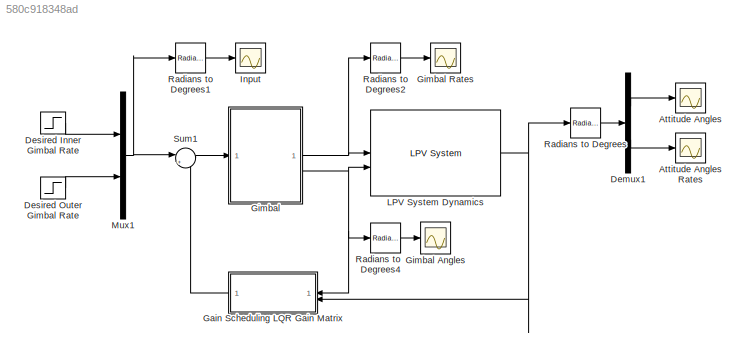
MODEL slx_580c918348ad
KIND model
CONFIG AbsTol = auto
CONFIG EnableMultiTasking = off
CONFIG FixedStep = auto
CONFIG MaxStep = auto
CONFIG MinStep = auto
CONFIG RelTol = 1e-3
CONFIG SampleTimeConstraint = Unconstrained
CONFIG SolverName = ode45
CONFIG StartTime = 0.0
CONFIG StopTime = tf
BLOCK [Scope] Attitude Angles
  Floating = off
  NumInputPorts = 1
  ScopeSpecificationString = Simulink.scopes.TimeScopeBlockCfg('CurrentConfiguration', extmgr.ConfigurationSet(extmgr.Configuration('Core','General UI',true),extmgr.Configuration('Core','Source UI',true),extmgr.Configuration('Sources','WiredSimulink',true,'DataLoggingVariableName','Attitude_Angles','DataLogging',true,'DataLoggingSaveFormat','StructureWithTime'),extmgr.Configuration('Visuals','Time Domain',true,'SerializedDisp...<+1694ch>
BLOCK [Scope] Attitude Angles Rates
  Floating = off
  NumInputPorts = 1
  ScopeSpecificationString = Simulink.scopes.TimeScopeBlockCfg('CurrentConfiguration', extmgr.ConfigurationSet(extmgr.Configuration('Core','General UI',true),extmgr.Configuration('Core','Source UI',true),extmgr.Configuration('Sources','WiredSimulink',true,'DataLoggingVariableName','Attitude_Angles_Rates','DataLogging',true,'DataLoggingSaveFormat','StructureWithTime'),extmgr.Configuration('Visuals','Time Domain',true,'Serializ...<+1671ch>
BLOCK [Demux] Demux1
  Outputs = 2
BLOCK [Step] Desired Inner Gimbal Rate
  After = 0
  SampleTime = 0
BLOCK [Step] Desired Outer Gimbal Rate
  After = 0
  SampleTime = 0
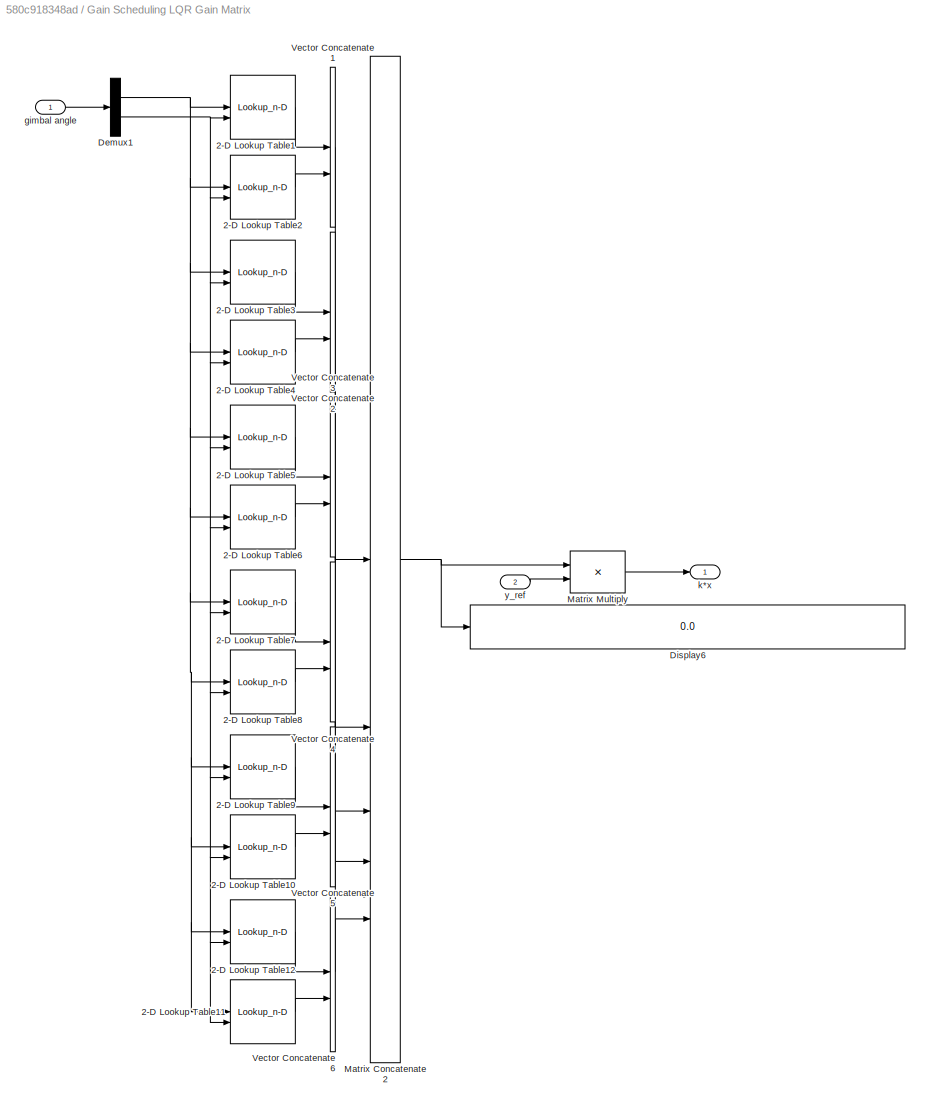
BLOCK [SubSystem] Gain Scheduling LQR Gain Matrix
BLOCK [Lookup_n-D] Gain Scheduling LQR Gain Matrix/2-D Lookup Table1
  BreakpointsForDimension1 = p1
  BreakpointsForDimension2 = p2
  InputPortMap = u0,u1
  InternalRulePriority = Speed
  RndMeth = Simplest
  Table = K11
BLOCK [Lookup_n-D] Gain Scheduling LQR Gain Matrix/2-D Lookup Table10
  BreakpointsForDimension1 = p1
  BreakpointsForDimension2 = p2
  InputPortMap = u0,u1
  InternalRulePriority = Speed
  RndMeth = Simplest
  Table = K25
BLOCK [Lookup_n-D] Gain Scheduling LQR Gain Matrix/2-D Lookup Table11
  BreakpointsForDimension1 = p1
  BreakpointsForDimension2 = p2
  InputPortMap = u0,u1
  InternalRulePriority = Speed
  RndMeth = Simplest
  Table = K26
BLOCK [Lookup_n-D] Gain Scheduling LQR Gain Matrix/2-D Lookup Table12
  BreakpointsForDimension1 = p1
  BreakpointsForDimension2 = p2
  InputPortMap = u0,u1
  InternalRulePriority = Speed
  RndMeth = Simplest
  Table = K16
BLOCK [Lookup_n-D] Gain Scheduling LQR Gain Matrix/2-D Lookup Table2
  BreakpointsForDimension1 = p1
  BreakpointsForDimension2 = p2
  InputPortMap = u0,u1
  InternalRulePriority = Speed
  RndMeth = Simplest
  Table = K21
BLOCK [Lookup_n-D] Gain Scheduling LQR Gain Matrix/2-D Lookup Table3
  BreakpointsForDimension1 = p1
  BreakpointsForDimension2 = p2
  InputPortMap = u0,u1
  InternalRulePriority = Speed
  RndMeth = Simplest
  Table = K12
BLOCK [Lookup_n-D] Gain Scheduling LQR Gain Matrix/2-D Lookup Table4
  BreakpointsForDimension1 = p1
  BreakpointsForDimension2 = p2
  InputPortMap = u0,u1
  InternalRulePriority = Speed
  RndMeth = Simplest
  Table = K22
BLOCK [Lookup_n-D] Gain Scheduling LQR Gain Matrix/2-D Lookup Table5
  BreakpointsForDimension1 = p1
  BreakpointsForDimension2 = p2
  InputPortMap = u0,u1
  InternalRulePriority = Speed
  RndMeth = Simplest
  Table = K13
BLOCK [Lookup_n-D] Gain Scheduling LQR Gain Matrix/2-D Lookup Table6
  BreakpointsForDimension1 = p1
  BreakpointsForDimension2 = p2
  InputPortMap = u0,u1
  InternalRulePriority = Speed
  RndMeth = Simplest
  Table = K23
BLOCK [Lookup_n-D] Gain Scheduling LQR Gain Matrix/2-D Lookup Table7
  BreakpointsForDimension1 = p1
  BreakpointsForDimension2 = p2
  InputPortMap = u0,u1
  InternalRulePriority = Speed
  RndMeth = Simplest
  Table = K14
BLOCK [Lookup_n-D] Gain Scheduling LQR Gain Matrix/2-D Lookup Table8
  BreakpointsForDimension1 = p1
  BreakpointsForDimension2 = p2
  InputPortMap = u0,u1
  InternalRulePriority = Speed
  RndMeth = Simplest
  Table = K24
BLOCK [Lookup_n-D] Gain Scheduling LQR Gain Matrix/2-D Lookup Table9
  BreakpointsForDimension1 = p1
  BreakpointsForDimension2 = p2
  InputPortMap = u0,u1
  InternalRulePriority = Speed
  RndMeth = Simplest
  Table = K15
BLOCK [Demux] Gain Scheduling LQR Gain Matrix/Demux1
  Outputs = 2
BLOCK [Display] Gain Scheduling LQR Gain Matrix/Display6
  Decimation = 1
BLOCK [Concatenate] Gain Scheduling LQR Gain Matrix/Matrix Concatenate2
  ConcatenateDimension = 2
  Mode = Multidimensional array
  NumInputs = 6
BLOCK [Product] Gain Scheduling LQR Gain Matrix/Matrix Multiply
  Multiplication = Matrix(*)
BLOCK [Concatenate] Gain Scheduling LQR Gain Matrix/Vector Concatenate1
BLOCK [Concatenate] Gain Scheduling LQR Gain Matrix/Vector Concatenate2
BLOCK [Concatenate] Gain Scheduling LQR Gain Matrix/Vector Concatenate3
BLOCK [Concatenate] Gain Scheduling LQR Gain Matrix/Vector Concatenate4
BLOCK [Concatenate] Gain Scheduling LQR Gain Matrix/Vector Concatenate5
BLOCK [Concatenate] Gain Scheduling LQR Gain Matrix/Vector Concatenate6
BLOCK [Inport] Gain Scheduling LQR Gain Matrix/gimbal angle
BLOCK [Outport] Gain Scheduling LQR Gain Matrix/k*x
BLOCK [Inport] Gain Scheduling LQR Gain Matrix/y_ref
  Port = 2
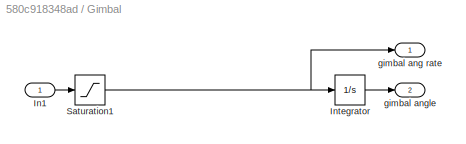
BLOCK [SubSystem] Gimbal
BLOCK [Scope] Gimbal Angles
  Floating = off
  NumInputPorts = 1
  ScopeSpecificationString = Simulink.scopes.TimeScopeBlockCfg('CurrentConfiguration', extmgr.ConfigurationSet(extmgr.Configuration('Core','General UI',true),extmgr.Configuration('Core','Source UI',true),extmgr.Configuration('Sources','WiredSimulink',true,'DataLoggingVariableName','gamma_output','DataLogging',true,'DataLoggingSaveFormat','StructureWithTime'),extmgr.Configuration('Visuals','Time Domain',true,'SerializedDisplay...<+2036ch>
BLOCK [Scope] Gimbal Rates
  Floating = off
  NumInputPorts = 1
  ScopeSpecificationString = Simulink.scopes.TimeScopeBlockCfg('CurrentConfiguration', extmgr.ConfigurationSet(extmgr.Configuration('Core','General UI',true),extmgr.Configuration('Core','Source UI',true),extmgr.Configuration('Sources','WiredSimulink',true,'DataLoggingVariableName','gamma_output_rates','DataLogging',true,'DataLoggingSaveFormat','StructureWithTime'),extmgr.Configuration('Visuals','Time Domain',true,'SerializedD...<+1683ch>
BLOCK [Inport] Gimbal/In1
BLOCK [Integrator] Gimbal/Integrator
  InitialCondition = [gamma1_initial,gamma2_initial]
BLOCK [Saturate] Gimbal/Saturation1
  LowerLimit = -9.52
  UpperLimit = 9.52
BLOCK [Outport] Gimbal/gimbal ang rate
BLOCK [Outport] Gimbal/gimbal angle
  Port = 2
BLOCK [Scope] Input
  Floating = off
  NumInputPorts = 1
  ScopeSpecificationString = Simulink.scopes.TimeScopeBlockCfg('CurrentConfiguration', extmgr.ConfigurationSet(extmgr.Configuration('Core','General UI',true),extmgr.Configuration('Core','Source UI',true),extmgr.Configuration('Sources','WiredSimulink',true,'DataLogging',true,'DataLoggingVariableName','Input','DataLoggingSaveFormat','StructureWithTime'),extmgr.Configuration('Visuals','Time Domain',true,'SerializedDisplays',{str...<+1686ch>
BLOCK [Reference] LPV System Dynamics  REF=cstblocks/Linear Parameter Varying/LPV System
  SourceBlock = cstblocks/Linear Parameter Varying/LPV System
  SourceType = LPV Block
BLOCK [Mux] Mux1
  DisplayOption = bar
  Inputs = 2
BLOCK [Reference] Radians to Degrees  REF=simulink_extras/Transformations/Radians
to Degrees
  SourceBlock = simulink_extras/Transformations/Radians\nto Degrees
  SourceType = RadiansToDegrees
BLOCK [Reference] Radians to Degrees1  REF=simulink_extras/Transformations/Radians
to Degrees
  SourceBlock = simulink_extras/Transformations/Radians\nto Degrees
  SourceType = RadiansToDegrees
BLOCK [Reference] Radians to Degrees2  REF=simulink_extras/Transformations/Radians
to Degrees
  SourceBlock = simulink_extras/Transformations/Radians\nto Degrees
  SourceType = RadiansToDegrees
BLOCK [Reference] Radians to Degrees4  REF=simulink_extras/Transformations/Radians
to Degrees
  SourceBlock = simulink_extras/Transformations/Radians\nto Degrees
  SourceType = RadiansToDegrees
BLOCK [Sum] Sum1
  Inputs = |+-
LINE Demux1:1 -> Attitude Angles:1
LINE Demux1:2 -> Attitude Angles Rates:1
LINE Desired Inner Gimbal Rate:1 -> Mux1:1
LINE Desired Outer Gimbal Rate:1 -> Mux1:2
LINE Gain Scheduling LQR Gain Matrix/2-D Lookup Table10:1 -> Gain Scheduling LQR Gain Matrix/Vector Concatenate5:2
LINE Gain Scheduling LQR Gain Matrix/2-D Lookup Table11:1 -> Gain Scheduling LQR Gain Matrix/Vector Concatenate6:2
LINE Gain Scheduling LQR Gain Matrix/2-D Lookup Table12:1 -> Gain Scheduling LQR Gain Matrix/Vector Concatenate6:1
LINE Gain Scheduling LQR Gain Matrix/2-D Lookup Table1:1 -> Gain Scheduling LQR Gain Matrix/Vector Concatenate1:1
LINE Gain Scheduling LQR Gain Matrix/2-D Lookup Table2:1 -> Gain Scheduling LQR Gain Matrix/Vector Concatenate1:2
LINE Gain Scheduling LQR Gain Matrix/2-D Lookup Table3:1 -> Gain Scheduling LQR Gain Matrix/Vector Concatenate2:1
LINE Gain Scheduling LQR Gain Matrix/2-D Lookup Table4:1 -> Gain Scheduling LQR Gain Matrix/Vector Concatenate2:2
LINE Gain Scheduling LQR Gain Matrix/2-D Lookup Table5:1 -> Gain Scheduling LQR Gain Matrix/Vector Concatenate3:1
LINE Gain Scheduling LQR Gain Matrix/2-D Lookup Table6:1 -> Gain Scheduling LQR Gain Matrix/Vector Concatenate3:2
LINE Gain Scheduling LQR Gain Matrix/2-D Lookup Table7:1 -> Gain Scheduling LQR Gain Matrix/Vector Concatenate4:1
LINE Gain Scheduling LQR Gain Matrix/2-D Lookup Table8:1 -> Gain Scheduling LQR Gain Matrix/Vector Concatenate4:2
LINE Gain Scheduling LQR Gain Matrix/2-D Lookup Table9:1 -> Gain Scheduling LQR Gain Matrix/Vector Concatenate5:1
NET Gain Scheduling LQR Gain Matrix/Demux1:1 -> Gain Scheduling LQR Gain Matrix/2-D Lookup Table10:1, Gain Scheduling LQR Gain Matrix/2-D Lookup Table11:1, Gain Scheduling LQR Gain Matrix/2-D Lookup Table12:1, Gain Scheduling LQR Gain Matrix/2-D Lookup Table1:1, Gain Scheduling LQR Gain Matrix/2-D Lookup Table2:1, Gain Scheduling LQR Gain Matrix/2-D Lookup Table3:1, Gain Scheduling LQR Gain Matrix/2-D Lookup Table4:1, Gain Scheduling LQR Gain Matrix/2-D Lookup Table5:1, Gain Scheduling LQR Gain Matrix/2-D Lookup Table6:1, Gain Scheduling LQR Gain Matrix/2-D Lookup Table7:1, Gain Scheduling LQR Gain Matrix/2-D Lookup Table8:1, Gain Scheduling LQR Gain Matrix/2-D Lookup Table9:1
NET Gain Scheduling LQR Gain Matrix/Demux1:2 -> Gain Scheduling LQR Gain Matrix/2-D Lookup Table10:2, Gain Scheduling LQR Gain Matrix/2-D Lookup Table11:2, Gain Scheduling LQR Gain Matrix/2-D Lookup Table12:2, Gain Scheduling LQR Gain Matrix/2-D Lookup Table1:2, Gain Scheduling LQR Gain Matrix/2-D Lookup Table2:2, Gain Scheduling LQR Gain Matrix/2-D Lookup Table3:2, Gain Scheduling LQR Gain Matrix/2-D Lookup Table4:2, Gain Scheduling LQR Gain Matrix/2-D Lookup Table5:2, Gain Scheduling LQR Gain Matrix/2-D Lookup Table6:2, Gain Scheduling LQR Gain Matrix/2-D Lookup Table7:2, Gain Scheduling LQR Gain Matrix/2-D Lookup Table8:2, Gain Scheduling LQR Gain Matrix/2-D Lookup Table9:2
NET Gain Scheduling LQR Gain Matrix/Matrix Concatenate2:1 -> Gain Scheduling LQR Gain Matrix/Display6:1, Gain Scheduling LQR Gain Matrix/Matrix Multiply:1
LINE Gain Scheduling LQR Gain Matrix/Matrix Multiply:1 -> Gain Scheduling LQR Gain Matrix/k*x:1
LINE Gain Scheduling LQR Gain Matrix/Vector Concatenate1:1 -> Gain Scheduling LQR Gain Matrix/Matrix Concatenate2:1
LINE Gain Scheduling LQR Gain Matrix/Vector Concatenate2:1 -> Gain Scheduling LQR Gain Matrix/Matrix Concatenate2:2
LINE Gain Scheduling LQR Gain Matrix/Vector Concatenate3:1 -> Gain Scheduling LQR Gain Matrix/Matrix Concatenate2:3
LINE Gain Scheduling LQR Gain Matrix/Vector Concatenate4:1 -> Gain Scheduling LQR Gain Matrix/Matrix Concatenate2:4
LINE Gain Scheduling LQR Gain Matrix/Vector Concatenate5:1 -> Gain Scheduling LQR Gain Matrix/Matrix Concatenate2:5
LINE Gain Scheduling LQR Gain Matrix/Vector Concatenate6:1 -> Gain Scheduling LQR Gain Matrix/Matrix Concatenate2:6
LINE Gain Scheduling LQR Gain Matrix/gimbal angle:1 -> Gain Scheduling LQR Gain Matrix/Demux1:1
LINE Gain Scheduling LQR Gain Matrix/y_ref:1 -> Gain Scheduling LQR Gain Matrix/Matrix Multiply:2
LINE Gain Scheduling LQR Gain Matrix:1 -> Sum1:2
LINE Gimbal/In1:1 -> Gimbal/Saturation1:1
LINE Gimbal/Integrator:1 -> Gimbal/gimbal angle:1
NET Gimbal/Saturation1:1 -> Gimbal/Integrator:1, Gimbal/gimbal ang rate:1
NET Gimbal:1 -> LPV System Dynamics:1, Radians to Degrees2:1
NET Gimbal:2 -> Gain Scheduling LQR Gain Matrix:1, LPV System Dynamics:2, Radians to Degrees4:1
NET LPV System Dynamics:1 -> Gain Scheduling LQR Gain Matrix:2, Radians to Degrees:1
NET Mux1:1 -> Radians to Degrees1:1, Sum1:1
LINE Radians to Degrees1:1 -> Input:1
LINE Radians to Degrees2:1 -> Gimbal Rates:1
LINE Radians to Degrees4:1 -> Gimbal Angles:1
LINE Radians to Degrees:1 -> Demux1:1
LINE Sum1:1 -> Gimbal:1
note: NET lines group one-source signal fan-out (src -> all destinations, sorted); 1:1 wires keep LINE
